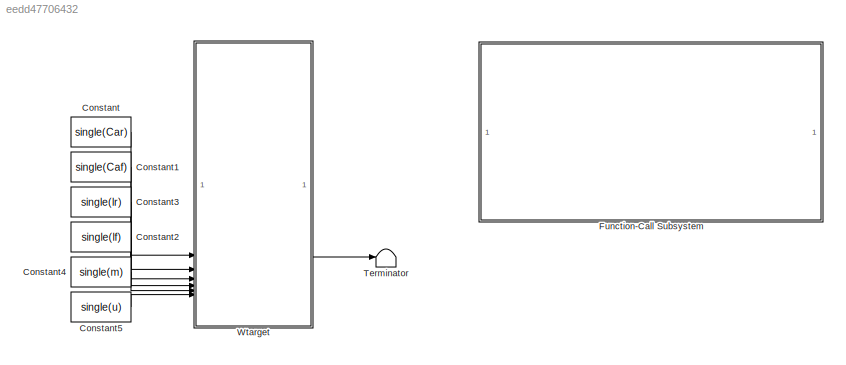
MODEL slx_eedd47706432
KIND model
CONFIG AbsTol = auto
CONFIG EnableMultiTasking = off
CONFIG FixedStep = auto
CONFIG MaxStep = auto
CONFIG MinStep = auto
CONFIG RelTol = 1e-3
CONFIG SampleTimeConstraint = Unconstrained
CONFIG SolverName = VariableStepAuto
CONFIG StartTime = 0.0
CONFIG StopTime = 10.0
BLOCK [Constant] Constant
  Value = single(Car)
BLOCK [Constant] Constant1
  Value = single(Caf)
BLOCK [Constant] Constant2
  Value = single(lf)
BLOCK [Constant] Constant3
  Value = single(lr)
BLOCK [Constant] Constant4
  Value = single(m)
BLOCK [Constant] Constant5
  Value = single(u)
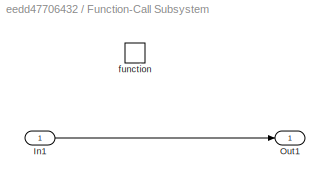
BLOCK [SubSystem] Function-Call Subsystem
  TreatAsAtomicUnit = on
BLOCK [Inport] Function-Call Subsystem/In1
BLOCK [Outport] Function-Call Subsystem/Out1
BLOCK [TriggerPort] Function-Call Subsystem/function
  StatesWhenEnabling = held
  TriggerType = function-call
  VariantControl = (inherit)
BLOCK [Terminator] Terminator
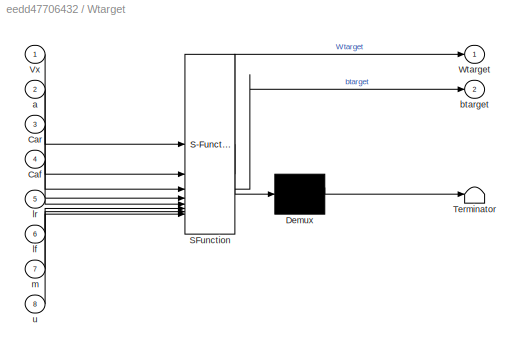
BLOCK [SubSystem] Wtarget
  ErrorFcn = Stateflow.Translate.translate
  LibrarySourceBlock = simulink/User-Defined\nFunctions/MATLAB Function
  PermitHierarchicalResolution = ExplicitOnly
  SFBlockType = MATLAB Function
  TreatAsAtomicUnit = on
BLOCK [Demux] Wtarget/ Demux 
  Outputs = 1
BLOCK [S-Function] Wtarget/ SFunction 
  EnableBusSupport = on
  FunctionName = sf_sfun
  PortCounts = [8 3]
  SFcnIsStateOwnerBlock = off
  SFunctionDeploymentMode = off
  Tag = Stateflow S-Function 2
BLOCK [Terminator] Wtarget/ Terminator 
BLOCK [Inport] Wtarget/Caf
  Port = 4
BLOCK [Inport] Wtarget/Car
  Port = 3
BLOCK [Inport] Wtarget/Vx
BLOCK [Outport] Wtarget/Wtarget
BLOCK [Inport] Wtarget/a
  Port = 2
BLOCK [Outport] Wtarget/btarget
  Port = 2
BLOCK [Inport] Wtarget/lf
  Port = 6
BLOCK [Inport] Wtarget/lr
  Port = 5
BLOCK [Inport] Wtarget/m
  Port = 7
BLOCK [Inport] Wtarget/u
  Port = 8
LINE Constant1:1 -> Wtarget:4
LINE Constant2:1 -> Wtarget:6
LINE Constant3:1 -> Wtarget:5
LINE Constant4:1 -> Wtarget:7
LINE Constant5:1 -> Wtarget:8
LINE Constant:1 -> Wtarget:3
LINE Function-Call Subsystem/In1:1 -> Function-Call Subsystem/Out1:1
LINE Wtarget:2 -> Terminator:1
CHART Wtarget states=1 transitions=1
  STATE_LABEL 'eML_blk_kernel()'
  STATE_LABEL 'SCRIPT:\nfunction [Wtarget,btarget] = fcn(Vx,a,Car,Caf,lr,lf,m,u)\nWdes = Vx*a/(lf+lr+(m*Vx*Vx*(lr*Car-lf*Caf)/Caf/Car/(lr+lf)/2));\nWu = 0.85*u*9.8/Vx;\nif abs(Wdes)<=Wu\nWtarget = Wdes;\nelse\n    Wtarget = Wu*sign(Wdes);\nend\nbdes = (lr-lf*m*Vx*Vx/Car/(lf+lr)/2)*a/(lr+lf+m*Vx*Vx*(lr*Car-lf*Caf)/Car/Caf/(lf+lr)/2);\nbu = atan(0.02*u*9.8);\nif abs(bdes)<=bu\nbtarget = bdes;\nelse\n    btarget = bu*sign(bdes);...<+4ch>'
CHART  states=0 transitions=0
